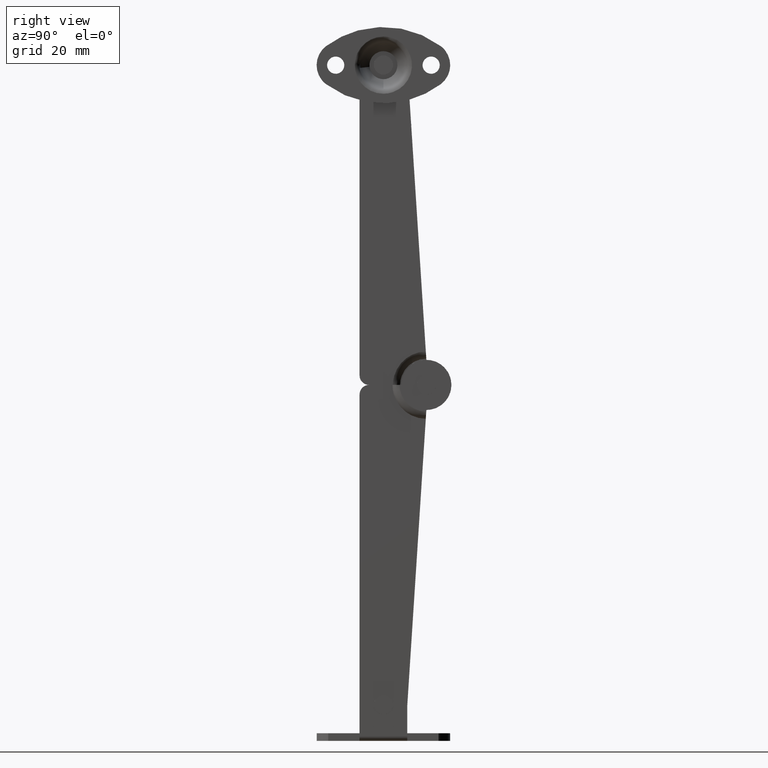
[diagram: clean part render]
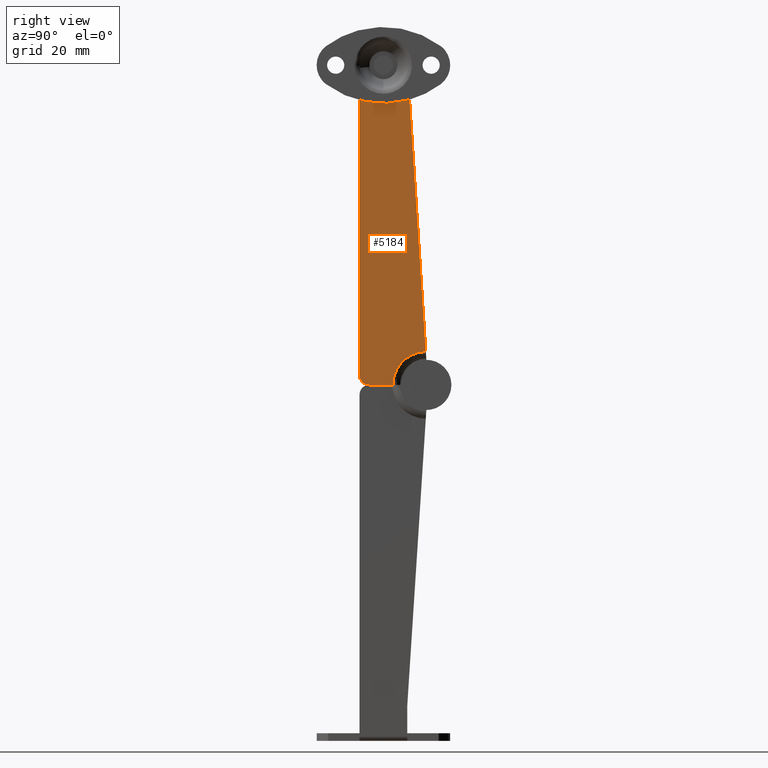
[diagram: same view with one face highlighted and labeled with its STEP entity id]
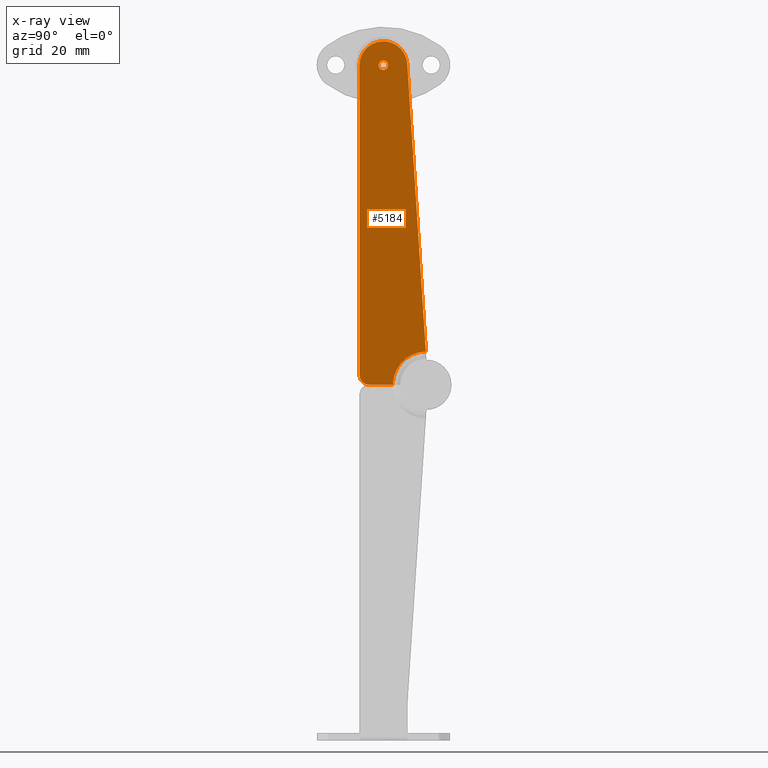
[diagram: x-ray of the same camera — body ghosted, the highlighted face saturated]
A machine part, right view. The second image highlights one B-rep face of the part: STEP entity #5184.
The next image is the same camera in x-ray: the body ghosted, the highlighted face saturated — about 0% of this face is hidden behind the body in this view.
In plain terms, the highlighted face is a freeform B-spline surface patch.
Its self-contained STEP definition (entity closure, byte-faithful):
#4284=CARTESIAN_POINT('',(4.149994000002190,-2.683172118815683,67.645771764199225));
#4285=VERTEX_POINT('',#4284);
#4286=CARTESIAN_POINT('',(4.149994000000155,-1.919616184445570,68.000030000000010));
#4287=VERTEX_POINT('',#4286);
#4288=CARTESIAN_POINT('',(4.149994000002190,-2.683172118815683,67.645771764199225));
#4289=CARTESIAN_POINT('',(4.149994000001930,-2.584002553758976,67.763440644036550));
#4290=CARTESIAN_POINT('',(4.149994000001286,-2.344857103049304,67.940125818521921));
#4291=CARTESIAN_POINT('',(4.149994000000525,-2.055396185989963,68.000170482789940));
#4292=CARTESIAN_POINT('',(4.149994000000155,-1.919616184445570,68.000030000000010));
#4293=B_SPLINE_CURVE_WITH_KNOTS('',3,(#4288,#4289,#4290,#4291,#4292),.UNSPECIFIED.,.F.,.U.,(4,1,4),(0.000000116544701,0.461537991849826,0.868828716377395),.UNSPECIFIED.);
#4294=EDGE_CURVE('',#4285,#4287,#4293,.T.);
#4347=CARTESIAN_POINT('',(4.149993999996441,-2.607970629555919,66.274655568550969));
#4348=VERTEX_POINT('',#4347);
#4354=CARTESIAN_POINT('',(4.149994000000155,-1.919616184445570,66.000029999999995));
#4355=VERTEX_POINT('',#4354);
#4356=CARTESIAN_POINT('',(4.149994000000155,-1.919616184445570,66.000029999999995));
#4357=CARTESIAN_POINT('',(4.149993999999390,-2.062014465666169,65.999819306748961));
#4358=CARTESIAN_POINT('',(4.149993999998020,-2.314863502682016,66.055077955596758));
#4359=CARTESIAN_POINT('',(4.149993999996873,-2.527707122243178,66.198383654774915));
#4360=CARTESIAN_POINT('',(4.149993999996441,-2.607970629555919,66.274655568550969));
#4361=B_SPLINE_CURVE_WITH_KNOTS('',3,(#4356,#4357,#4358,#4359,#4360),.UNSPECIFIED.,.F.,.U.,(4,1,4),(0.000000071943491,0.427099908639524,0.759289230294982),.UNSPECIFIED.);
#4362=EDGE_CURVE('',#4355,#4348,#4361,.T.);
#4364=CARTESIAN_POINT('',(4.149994000000156,-0.919616184445587,67.000029815553631));
#4365=VERTEX_POINT('',#4364);
#4366=CARTESIAN_POINT('',(4.149994000000156,-0.919616184445587,67.000029815553631));
#4367=CARTESIAN_POINT('',(4.149994000000153,-0.919304970018900,66.836332276811106));
#4368=CARTESIAN_POINT('',(4.149994000000159,-0.981213665978033,66.591245211649223));
#4369=CARTESIAN_POINT('',(4.149994000000152,-1.199631004664356,66.281174998349044));
#4370=CARTESIAN_POINT('',(4.149994000000161,-1.494336105321409,66.062612679994743));
#4371=CARTESIAN_POINT('',(4.149994000000149,-1.772315064022113,65.999804273291616));
#4372=CARTESIAN_POINT('',(4.149994000000155,-1.919616184445570,66.000029999999995));
#4373=B_SPLINE_CURVE_WITH_KNOTS('',3,(#4366,#4367,#4368,#4369,#4370,#4371,#4372),.UNSPECIFIED.,.F.,.U.,(4,1,1,1,4),(0.000000232851399,0.490926197148273,0.736389808753289,1.129122720947402,1.570953779327946),.UNSPECIFIED.);
#4374=EDGE_CURVE('',#4365,#4355,#4373,.T.);
#4376=CARTESIAN_POINT('',(4.149994000000155,-1.919616184445570,68.000030000000010));
#4377=CARTESIAN_POINT('',(4.149994000000151,-1.755918821359351,68.000341206033013));
#4378=CARTESIAN_POINT('',(4.149994000000163,-1.510831734924841,67.938432565364337));
#4379=CARTESIAN_POINT('',(4.149994000000161,-1.200761333571655,67.720015301802690));
#4380=CARTESIAN_POINT('',(4.149994000000128,-0.982198655708354,67.425308801425260));
#4381=CARTESIAN_POINT('',(4.149994000000173,-0.919390040153820,67.147331024591693));
#4382=CARTESIAN_POINT('',(4.149994000000156,-0.919616184445587,67.000029815553631));
#4383=B_SPLINE_CURVE_WITH_KNOTS('',3,(#4376,#4377,#4378,#4379,#4380,#4381,#4382),.UNSPECIFIED.,.F.,.U.,(4,1,1,1,4),(0.000000231876276,0.490926261531374,0.736389906305209,1.129122870276009,1.570953987262269),.UNSPECIFIED.);
#4384=EDGE_CURVE('',#4287,#4365,#4383,.T.);
#4403=CARTESIAN_POINT('',(4.149994000000154,-2.919616184445553,67.000030184446388));
#4404=VERTEX_POINT('',#4403);
#4405=CARTESIAN_POINT('',(4.149994000000154,-2.919616184445553,67.000030184446388));
#4406=CARTESIAN_POINT('',(4.149994000000571,-2.919766153267591,67.131677306995641));
#4407=CARTESIAN_POINT('',(4.149994000001313,-2.872689834336805,67.365535231021227));
#4408=CARTESIAN_POINT('',(4.149994000001940,-2.749317831185834,67.567629734172215));
#4409=CARTESIAN_POINT('',(4.149994000002190,-2.683172118815683,67.645771764199225));
#4410=B_SPLINE_CURVE_WITH_KNOTS('',3,(#4405,#4406,#4407,#4408,#4409),.UNSPECIFIED.,.F.,.U.,(4,1,4),(0.000000097202141,0.394893671305769,0.702050397232916),.UNSPECIFIED.);
#4411=EDGE_CURVE('',#4404,#4285,#4410,.T.);
#4413=CARTESIAN_POINT('',(4.149993999996441,-2.607970629555919,66.274655568550969));
#4414=CARTESIAN_POINT('',(4.149993999996859,-2.693892336470078,66.356069830631512));
#4415=CARTESIAN_POINT('',(4.149993999997987,-2.856558790893632,66.577567244949066));
#4416=CARTESIAN_POINT('',(4.149993999999376,-2.919886714591532,66.847803031836051));
#4417=CARTESIAN_POINT('',(4.149994000000154,-2.919616184445553,67.000030184446388));
#4418=B_SPLINE_CURVE_WITH_KNOTS('',3,(#4413,#4414,#4415,#4416,#4417),.UNSPECIFIED.,.F.,.U.,(4,1,4),(0.000000100790509,0.355104070625016,0.811665313370156),.UNSPECIFIED.);
#4419=EDGE_CURVE('',#4348,#4404,#4418,.T.);
#4721=CARTESIAN_POINT('',(4.149994000000104,6.967233794826230,7.001584790181060));
#4722=VERTEX_POINT('',#4721);
#4733=CARTESIAN_POINT('',(4.149994000000104,0.077884797254867,-2.558285E-015));
#4734=VERTEX_POINT('',#4733);
#4735=CARTESIAN_POINT('',(4.149994000000104,6.967233794826230,7.001584790181060));
#4736=CARTESIAN_POINT('',(4.149994000000115,6.145076818664695,6.988951744614350));
#4737=CARTESIAN_POINT('',(4.149994000000089,4.901927092745499,6.745862206632398));
#4738=CARTESIAN_POINT('',(4.149994000000118,3.396571581068793,6.000792736351110));
#4739=CARTESIAN_POINT('',(4.149994000000094,2.210567482285046,5.114901463425104));
#4740=CARTESIAN_POINT('',(4.149994000000111,1.117548129941327,3.829105442091585));
#4741=CARTESIAN_POINT('',(4.149994000000102,0.281907664689556,2.040995599186846));
#4742=CARTESIAN_POINT('',(4.149994000000104,0.077591696836252,0.708783842829475));
#4743=CARTESIAN_POINT('',(4.149994000000104,0.077884797254867,-2.558285E-015));
#4744=B_SPLINE_CURVE_WITH_KNOTS('',3,(#4735,#4736,#4737,#4738,#4739,#4740,#4741,#4742,#4743),.UNSPECIFIED.,.F.,.U.,(4,1,1,1,1,1,4),(0.000000168392056,2.466449820362751,3.742211999100577,5.017998019438885,6.889055405491963,8.760162985661516,10.886411700271969),.UNSPECIFIED.);
#4745=EDGE_CURVE('',#4722,#4734,#4744,.T.);
#4931=CARTESIAN_POINT('',(4.149994000000155,-4.919585184445620,-5.312255E-015));
#4932=VERTEX_POINT('',#4931);
#4940=CARTESIAN_POINT('',(4.149994000000155,-6.919616184445630,2.0));
#4941=VERTEX_POINT('',#4940);
#4942=CARTESIAN_POINT('',(4.149994000000155,-6.919616184445630,2.0));
#4943=CARTESIAN_POINT('',(4.149994000000153,-6.919648752715969,1.836376247735181));
#4944=CARTESIAN_POINT('',(4.149994000000150,-6.879233919540152,1.509133827819073));
#4945=CARTESIAN_POINT('',(4.149994000000165,-6.695316729503606,1.032293687005245));
#4946=CARTESIAN_POINT('',(4.149994000000151,-6.356811747117137,0.563849668040058));
#4947=CARTESIAN_POINT('',(4.149994000000151,-5.770041850844332,0.128458190151365));
#4948=CARTESIAN_POINT('',(4.149994000000172,-5.230548583309941,-0.000492401298567));
#4949=CARTESIAN_POINT('',(4.149994000000155,-4.919585184445620,-5.312255E-015));
#4950=B_SPLINE_CURVE_WITH_KNOTS('',3,(#4942,#4943,#4944,#4945,#4946,#4947,#4948,#4949),.UNSPECIFIED.,.F.,.U.,(4,1,1,1,1,4),(0.000000310909388,0.490881374223735,0.981790556518768,1.521803862324752,2.208997975549487,3.141688961390956),.UNSPECIFIED.);
#4951=EDGE_CURVE('',#4941,#4932,#4950,.T.);
#4987=CARTESIAN_POINT('',(4.149994000000104,0.077884797254867,-2.558285E-015));
#4988=CARTESIAN_POINT('',(4.149994000000155,-4.919585184445620,-5.312255E-015));
#4989=QUASI_UNIFORM_CURVE('',1,(#4987,#4988),.UNSPECIFIED.,.F.,.U.);
#4990=EDGE_CURVE('',#4734,#4932,#4989,.T.);
#5014=CARTESIAN_POINT('',(4.149994000000155,3.070007815554324,67.322387000000091));
#5015=VERTEX_POINT('',#5014);
#5021=CARTESIAN_POINT('',(4.149994000000155,3.070007815554324,67.322387000000091));
#5022=CARTESIAN_POINT('',(4.149994000000104,6.967233794826230,7.001584790181060));
#5023=QUASI_UNIFORM_CURVE('',1,(#5021,#5022),.UNSPECIFIED.,.F.,.U.);
#5024=EDGE_CURVE('',#5015,#4722,#5023,.T.);
#5056=CARTESIAN_POINT('',(4.149994000000155,-6.919616184445630,67.000029999999995));
#5057=VERTEX_POINT('',#5056);
#5065=CARTESIAN_POINT('',(4.149994000000156,-2.080867323739609,71.997428857317601));
#5066=VERTEX_POINT('',#5065);
#5067=CARTESIAN_POINT('',(4.149994000000156,-2.080867323739609,71.997428857317601));
#5068=CARTESIAN_POINT('',(4.149994000000144,-2.621524473437072,71.980279739219171));
#5069=CARTESIAN_POINT('',(4.149994000000189,-3.517564022733131,71.803239644230459));
#5070=CARTESIAN_POINT('',(4.149994000000131,-4.598196336998261,71.260977351532063));
#5071=CARTESIAN_POINT('',(4.149994000000176,-5.517639618361492,70.542779234446940));
#5072=CARTESIAN_POINT('',(4.149994000000178,-6.244613313409837,69.619638375484172));
#5073=CARTESIAN_POINT('',(4.149994000000094,-6.789032791010961,68.362149094451240));
#5074=CARTESIAN_POINT('',(4.149994000000191,-6.919859202656015,67.500879786662836));
#5075=CARTESIAN_POINT('',(4.149994000000155,-6.919616184445630,67.000029999999995));
#5076=B_SPLINE_CURVE_WITH_KNOTS('',3,(#5067,#5068,#5069,#5070,#5071,#5072,#5073,#5074,#5075),.UNSPECIFIED.,.F.,.U.,(4,1,1,1,1,1,4),(0.000000180031790,1.622680662212042,2.704496695220823,3.606003750061057,5.108447716001114,6.190266212549386,7.692743177836291),.UNSPECIFIED.);
#5077=EDGE_CURVE('',#5066,#5057,#5076,.T.);
#5079=CARTESIAN_POINT('',(4.149994000000155,3.070007815554324,67.322387000000091));
#5080=CARTESIAN_POINT('',(4.149994000000153,3.045536927134748,67.702228509344437));
#5081=CARTESIAN_POINT('',(4.149994000000154,2.898497845285527,68.515783004360785));
#5082=CARTESIAN_POINT('',(4.149994000000153,2.348632579990512,69.730951966904215));
#5083=CARTESIAN_POINT('',(4.149994000000167,1.505745533633747,70.716260649080368));
#5084=CARTESIAN_POINT('',(4.149994000000150,0.482849509221279,71.432250547855091));
#5085=CARTESIAN_POINT('',(4.149994000000159,-0.674985984981189,71.906116616647779));
#5086=CARTESIAN_POINT('',(4.149994000000156,-1.580289107733055,72.013812999078112));
#5087=CARTESIAN_POINT('',(4.149994000000156,-2.080867323739609,71.997428857317601));
#5088=B_SPLINE_CURVE_WITH_KNOTS('',3,(#5079,#5080,#5081,#5082,#5083,#5084,#5085,#5086,#5087),.UNSPECIFIED.,.F.,.U.,(4,1,1,1,1,1,4),(0.000000180040264,1.141886356745256,2.464098804366640,3.966555570978776,4.988252266825550,6.190269851078618,7.692747699474840),.UNSPECIFIED.);
#5089=EDGE_CURVE('',#5015,#5066,#5088,.T.);
#5132=CARTESIAN_POINT('',(4.149994000000155,-6.919616184445630,2.0));
#5133=CARTESIAN_POINT('',(4.149994000000155,-6.919616184445630,67.000029999999995));
#5134=QUASI_UNIFORM_CURVE('',1,(#5132,#5133),.UNSPECIFIED.,.F.,.U.);
#5135=EDGE_CURVE('',#4941,#5057,#5134,.T.);
#5162=CARTESIAN_POINT('',(4.149994000000104,-7.613264444354662,-3.596358631284377));
#5163=CARTESIAN_POINT('',(4.149994000000104,7.660882303051489,-3.596358631284377));
#5164=CARTESIAN_POINT('',(4.149994000000104,-7.613264444354662,75.595535153584166));
#5165=CARTESIAN_POINT('',(4.149994000000104,7.660882303051489,75.595535153584166));
#5166=B_SPLINE_SURFACE_WITH_KNOTS('',1,1,((#5162,#5164),(#5163,#5165)),.UNSPECIFIED.,.F.,.F.,.U.,(2,2),(2,2),(0.0,15.274146747406149),(0.0,79.191893784868540),.UNSPECIFIED.);
#5167=ORIENTED_EDGE('',*,*,#5024,.F.);
#5168=ORIENTED_EDGE('',*,*,#5089,.T.);
#5169=ORIENTED_EDGE('',*,*,#5077,.T.);
#5170=ORIENTED_EDGE('',*,*,#5135,.F.);
#5171=ORIENTED_EDGE('',*,*,#4951,.T.);
#5172=ORIENTED_EDGE('',*,*,#4990,.F.);
#5173=ORIENTED_EDGE('',*,*,#4745,.F.);
#5174=EDGE_LOOP('',(#5167,#5168,#5169,#5170,#5171,#5172,#5173));
#5175=FACE_OUTER_BOUND('',#5174,.T.);
#5176=ORIENTED_EDGE('',*,*,#4384,.T.);
#5177=ORIENTED_EDGE('',*,*,#4374,.T.);
#5178=ORIENTED_EDGE('',*,*,#4362,.T.);
#5179=ORIENTED_EDGE('',*,*,#4419,.T.);
#5180=ORIENTED_EDGE('',*,*,#4411,.T.);
#5181=ORIENTED_EDGE('',*,*,#4294,.T.);
#5182=EDGE_LOOP('',(#5176,#5177,#5178,#5179,#5180,#5181));
#5183=FACE_BOUND('',#5182,.T.);
#5184=ADVANCED_FACE('',(#5175,#5183),#5166,.T.);